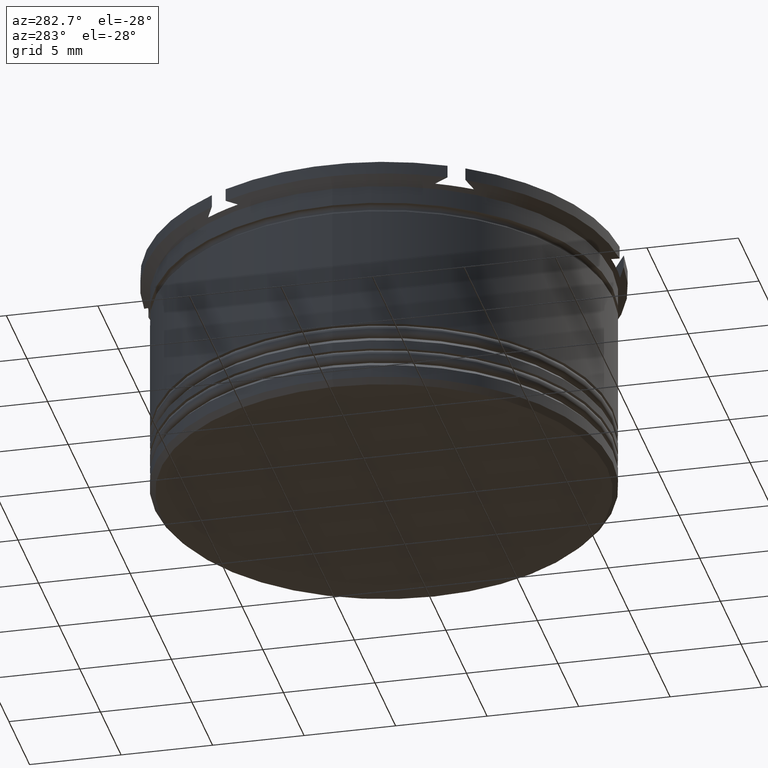
[diagram: clean part render]
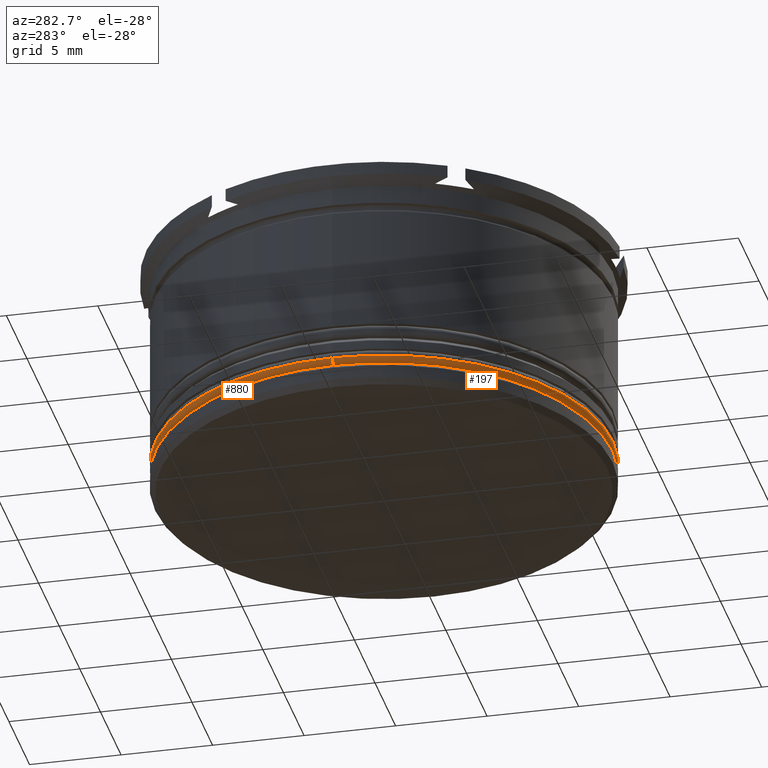
[diagram: same view with one multi-face feature highlighted, each face labeled with its STEP entity id]
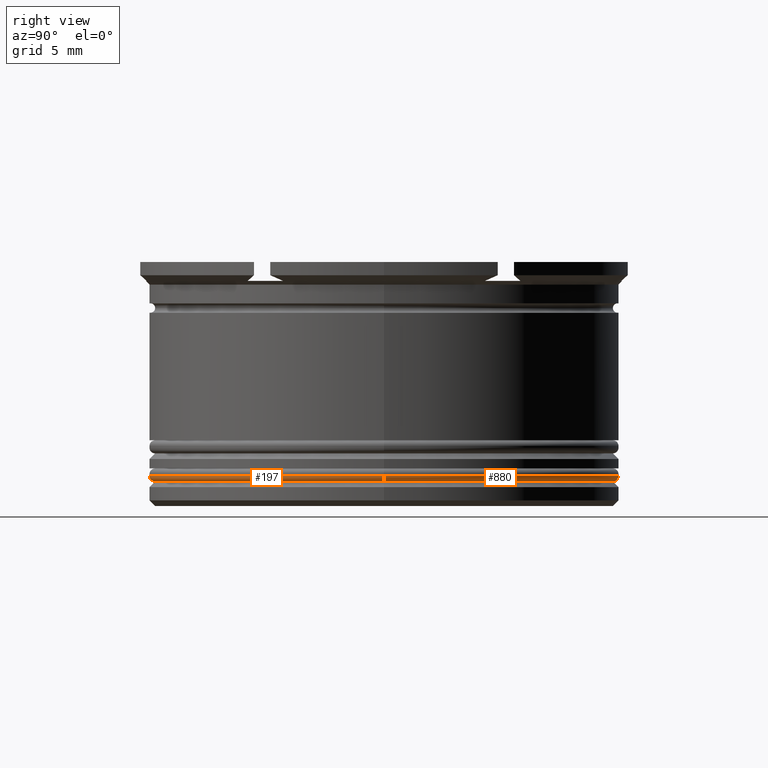
[diagram: same view with one multi-face feature highlighted, each face labeled with its STEP entity id]
A machine part, auxiliary view. The highlighted faces form ONE feature: a constant-radius fillet chain: 2 tangent blend faces with common blend radius 0.3 mm. The faces share edges in the B-rep.
A second angle (right view) of the same feature is appended — it is thin or edge-on in the first view.
Their STEP definitions:
[1] entity #880 (Torus):
#53 = CARTESIAN_POINT ( 'NONE',  ( -12.50000000000000000, 1.530808498934191521E-15, -11.40000000000000746 ) ) ;
#56 = ORIENTED_EDGE ( 'NONE', *, *, #1375, .F. ) ;
#65 = DIRECTION ( 'NONE',  ( -0.000000000000000000, -0.000000000000000000, -1.000000000000000000 ) ) ;
#78 = EDGE_CURVE ( 'NONE', #2019, #1246, #2366, .T. ) ;
#123 = EDGE_LOOP ( 'NONE', ( #56, #1867, #2069, #2125 ) ) ;
#211 = CARTESIAN_POINT ( 'NONE',  ( 0.000000000000000000, 0.000000000000000000, -11.40000000000000746 ) ) ;
#676 = CARTESIAN_POINT ( 'NONE',  ( 12.50000000000000000, 0.000000000000000000, -11.40000000000000746 ) ) ;
#679 = TOROIDAL_SURFACE ( 'NONE', #757, 12.20000000000000107, 0.2999999999999999889 ) ;
#757 = AXIS2_PLACEMENT_3D ( 'NONE', #211, #1882, #973 ) ;
#880 = ADVANCED_FACE ( 'NONE', ( #1110 ), #679, .T. ) ;
#900 = DIRECTION ( 'NONE',  ( 1.224646799147353207E-16, 1.000000000000000000, -0.000000000000000000 ) ) ;
#973 = DIRECTION ( 'NONE',  ( 1.000000000000000000, 0.000000000000000000, 0.000000000000000000 ) ) ;
#985 = CARTESIAN_POINT ( 'NONE',  ( 12.20000000000000107, 0.000000000000000000, -11.70000000000000462 ) ) ;
#1059 = VERTEX_POINT ( 'NONE', #985 ) ;
#1061 = AXIS2_PLACEMENT_3D ( 'NONE', #1207, #65, #2126 ) ;
#1089 = EDGE_CURVE ( 'NONE', #1731, #1246, #1139, .T. ) ;
#1110 = FACE_OUTER_BOUND ( 'NONE', #123, .T. ) ;
#1139 = CIRCLE ( 'NONE', #1450, 0.2999999999999999334 ) ;
#1153 = CARTESIAN_POINT ( 'NONE',  ( 12.20000000000000107, 0.000000000000000000, -11.40000000000000746 ) ) ;
#1207 = CARTESIAN_POINT ( 'NONE',  ( 0.000000000000000000, 0.000000000000000000, -11.70000000000000462 ) ) ;
#1224 = DIRECTION ( 'NONE',  ( 0.000000000000000000, 0.000000000000000000, 1.000000000000000000 ) ) ;
#1246 = VERTEX_POINT ( 'NONE', #53 ) ;
#1317 = DIRECTION ( 'NONE',  ( 0.000000000000000000, 0.000000000000000000, -1.000000000000000000 ) ) ;
#1375 = EDGE_CURVE ( 'NONE', #1731, #1059, #2182, .T. ) ;
#1408 = CARTESIAN_POINT ( 'NONE',  ( 0.000000000000000000, 0.000000000000000000, -11.40000000000000746 ) ) ;
#1450 = AXIS2_PLACEMENT_3D ( 'NONE', #2363, #900, #2353 ) ;
#1479 = AXIS2_PLACEMENT_3D ( 'NONE', #1408, #1224, #1624 ) ;
#1624 = DIRECTION ( 'NONE',  ( 1.000000000000000000, 0.000000000000000000, 0.000000000000000000 ) ) ;
#1713 = DIRECTION ( 'NONE',  ( 0.000000000000000000, -1.000000000000000000, 0.000000000000000000 ) ) ;
#1731 = VERTEX_POINT ( 'NONE', #2205 ) ;
#1839 = AXIS2_PLACEMENT_3D ( 'NONE', #1153, #1713, #1317 ) ;
#1867 = ORIENTED_EDGE ( 'NONE', *, *, #1089, .T. ) ;
#1882 = DIRECTION ( 'NONE',  ( 0.000000000000000000, 0.000000000000000000, 1.000000000000000000 ) ) ;
#1959 = CIRCLE ( 'NONE', #1839, 0.2999999999999999334 ) ;
#2019 = VERTEX_POINT ( 'NONE', #676 ) ;
#2069 = ORIENTED_EDGE ( 'NONE', *, *, #78, .F. ) ;
#2125 = ORIENTED_EDGE ( 'NONE', *, *, #2168, .F. ) ;
#2126 = DIRECTION ( 'NONE',  ( 1.000000000000000000, 0.000000000000000000, 0.000000000000000000 ) ) ;
#2168 = EDGE_CURVE ( 'NONE', #1059, #2019, #1959, .T. ) ;
#2182 = CIRCLE ( 'NONE', #1061, 12.20000000000000107 ) ;
#2205 = CARTESIAN_POINT ( 'NONE',  ( -12.20000000000000107, 1.512438796946981289E-15, -11.70000000000000462 ) ) ;
#2353 = DIRECTION ( 'NONE',  ( -1.000000000000000000, 1.224646799147353207E-16, 0.000000000000000000 ) ) ;
#2363 = CARTESIAN_POINT ( 'NONE',  ( -12.20000000000000107, 1.494069094959771056E-15, -11.40000000000000746 ) ) ;
#2366 = CIRCLE ( 'NONE', #1479, 12.50000000000000000 ) ;
[2] entity #197 (Torus):
#26 = AXIS2_PLACEMENT_3D ( 'NONE', #1704, #202, #1868 ) ;
#53 = CARTESIAN_POINT ( 'NONE',  ( -12.50000000000000000, 1.530808498934191521E-15, -11.40000000000000746 ) ) ;
#197 = ADVANCED_FACE ( 'NONE', ( #542 ), #1914, .T. ) ;
#202 = DIRECTION ( 'NONE',  ( 0.000000000000000000, 0.000000000000000000, 1.000000000000000000 ) ) ;
#255 = DIRECTION ( 'NONE',  ( -0.000000000000000000, -0.000000000000000000, -1.000000000000000000 ) ) ;
#367 = AXIS2_PLACEMENT_3D ( 'NONE', #1907, #255, #1588 ) ;
#466 = DIRECTION ( 'NONE',  ( 0.000000000000000000, 0.000000000000000000, 1.000000000000000000 ) ) ;
#512 = ORIENTED_EDGE ( 'NONE', *, *, #1046, .F. ) ;
#542 = FACE_OUTER_BOUND ( 'NONE', #836, .T. ) ;
#616 = ORIENTED_EDGE ( 'NONE', *, *, #2168, .T. ) ;
#676 = CARTESIAN_POINT ( 'NONE',  ( 12.50000000000000000, 0.000000000000000000, -11.40000000000000746 ) ) ;
#796 = CARTESIAN_POINT ( 'NONE',  ( 0.000000000000000000, 0.000000000000000000, -11.40000000000000746 ) ) ;
#836 = EDGE_LOOP ( 'NONE', ( #1069, #512, #616, #1970 ) ) ;
#900 = DIRECTION ( 'NONE',  ( 1.224646799147353207E-16, 1.000000000000000000, -0.000000000000000000 ) ) ;
#985 = CARTESIAN_POINT ( 'NONE',  ( 12.20000000000000107, 0.000000000000000000, -11.70000000000000462 ) ) ;
#1046 = EDGE_CURVE ( 'NONE', #1059, #1731, #1413, .T. ) ;
#1059 = VERTEX_POINT ( 'NONE', #985 ) ;
#1069 = ORIENTED_EDGE ( 'NONE', *, *, #1089, .F. ) ;
#1089 = EDGE_CURVE ( 'NONE', #1731, #1246, #1139, .T. ) ;
#1139 = CIRCLE ( 'NONE', #1450, 0.2999999999999999334 ) ;
#1153 = CARTESIAN_POINT ( 'NONE',  ( 12.20000000000000107, 0.000000000000000000, -11.40000000000000746 ) ) ;
#1246 = VERTEX_POINT ( 'NONE', #53 ) ;
#1317 = DIRECTION ( 'NONE',  ( 0.000000000000000000, 0.000000000000000000, -1.000000000000000000 ) ) ;
#1337 = CIRCLE ( 'NONE', #2119, 12.50000000000000000 ) ;
#1368 = DIRECTION ( 'NONE',  ( 1.000000000000000000, 0.000000000000000000, 0.000000000000000000 ) ) ;
#1393 = EDGE_CURVE ( 'NONE', #1246, #2019, #1337, .T. ) ;
#1413 = CIRCLE ( 'NONE', #367, 12.20000000000000107 ) ;
#1450 = AXIS2_PLACEMENT_3D ( 'NONE', #2363, #900, #2353 ) ;
#1588 = DIRECTION ( 'NONE',  ( 1.000000000000000000, 0.000000000000000000, 0.000000000000000000 ) ) ;
#1704 = CARTESIAN_POINT ( 'NONE',  ( 0.000000000000000000, 0.000000000000000000, -11.40000000000000746 ) ) ;
#1713 = DIRECTION ( 'NONE',  ( 0.000000000000000000, -1.000000000000000000, 0.000000000000000000 ) ) ;
#1731 = VERTEX_POINT ( 'NONE', #2205 ) ;
#1839 = AXIS2_PLACEMENT_3D ( 'NONE', #1153, #1713, #1317 ) ;
#1868 = DIRECTION ( 'NONE',  ( 1.000000000000000000, 0.000000000000000000, 0.000000000000000000 ) ) ;
#1907 = CARTESIAN_POINT ( 'NONE',  ( 0.000000000000000000, 0.000000000000000000, -11.70000000000000462 ) ) ;
#1914 = TOROIDAL_SURFACE ( 'NONE', #26, 12.20000000000000107, 0.2999999999999999889 ) ;
#1959 = CIRCLE ( 'NONE', #1839, 0.2999999999999999334 ) ;
#1970 = ORIENTED_EDGE ( 'NONE', *, *, #1393, .F. ) ;
#2019 = VERTEX_POINT ( 'NONE', #676 ) ;
#2119 = AXIS2_PLACEMENT_3D ( 'NONE', #796, #466, #1368 ) ;
#2168 = EDGE_CURVE ( 'NONE', #1059, #2019, #1959, .T. ) ;
#2205 = CARTESIAN_POINT ( 'NONE',  ( -12.20000000000000107, 1.512438796946981289E-15, -11.70000000000000462 ) ) ;
#2353 = DIRECTION ( 'NONE',  ( -1.000000000000000000, 1.224646799147353207E-16, 0.000000000000000000 ) ) ;
#2363 = CARTESIAN_POINT ( 'NONE',  ( -12.20000000000000107, 1.494069094959771056E-15, -11.40000000000000746 ) ) ;